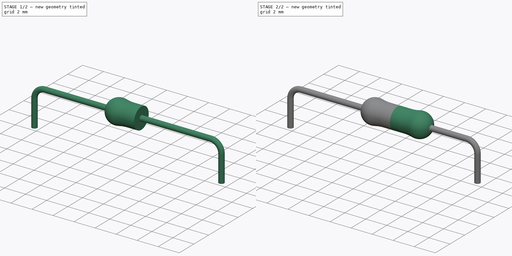
[diagram: build sequence overview — one tinted view per stage of 2, left to right]
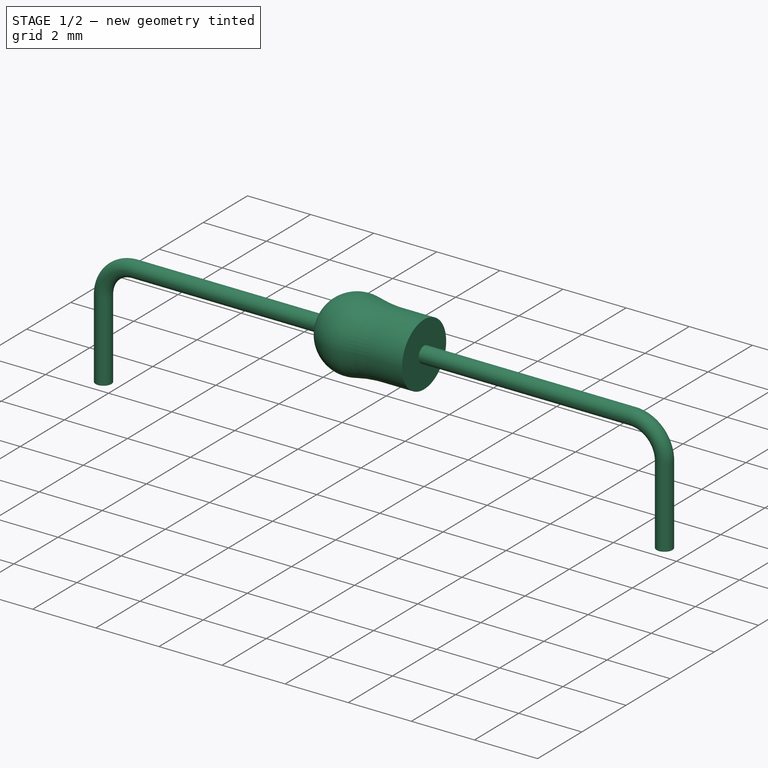
[diagram: stage 1 of 2 — iso view after this stage's code; geometry added in this stage tinted green]
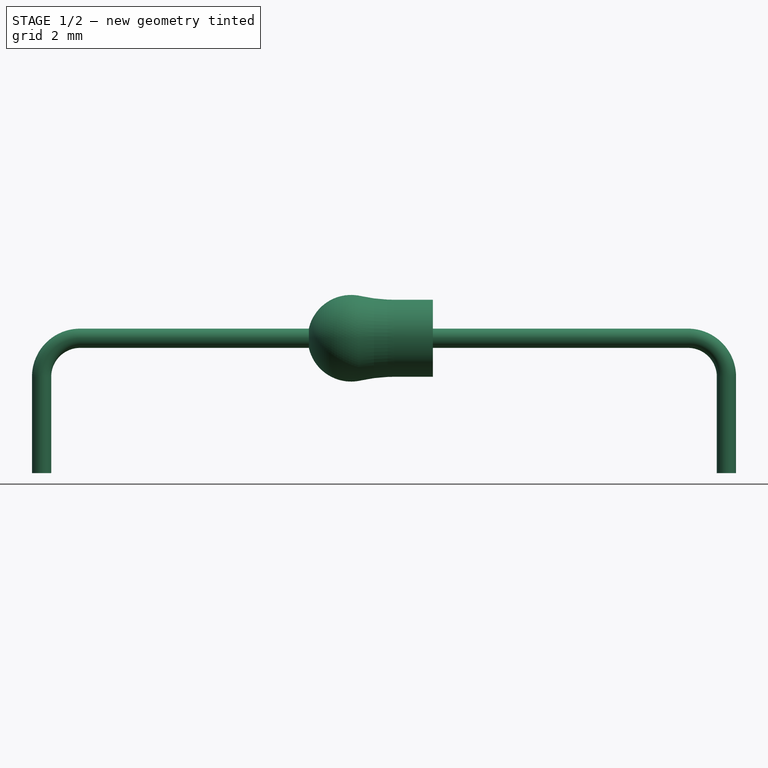
[diagram: stage 1 of 2 — front view after this stage's code; geometry added in this stage tinted green]
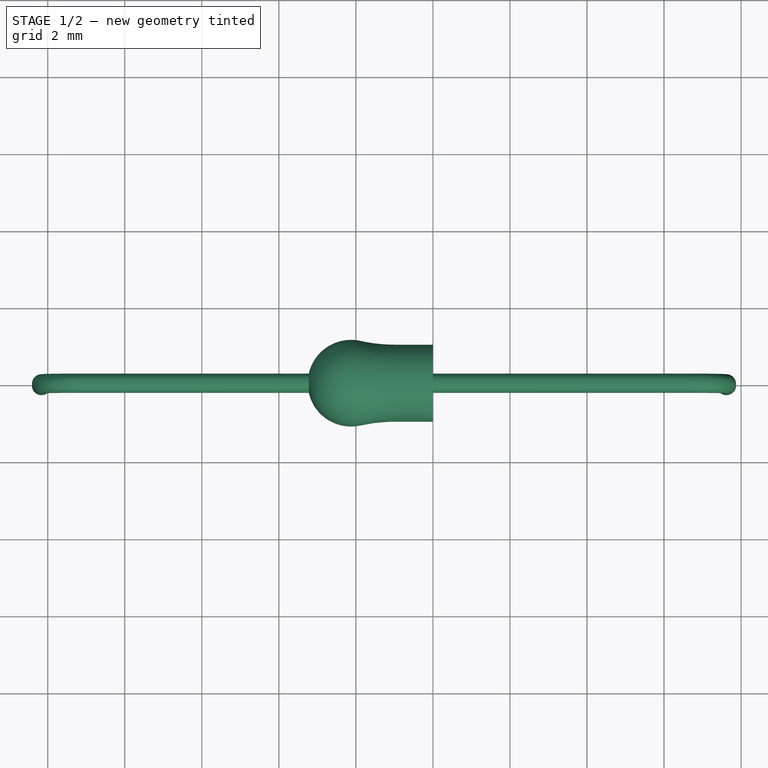
[diagram: stage 1 of 2 — top view after this stage's code; geometry added in this stage tinted green]
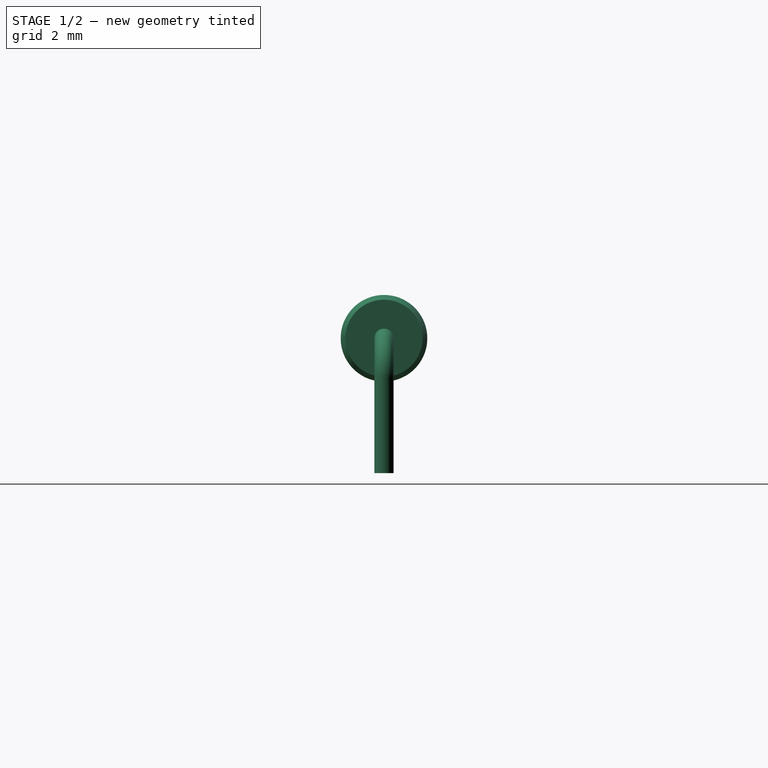
[diagram: stage 1 of 2 — right view after this stage's code; geometry added in this stage tinted green]
FCSTD DOCUMENT  (FreeCAD 0.14R3692 (Git))
Label: Resistor
License: CC-BY 3.0
LicenseURL: http://creativecommons.org/licenses/by/3.0/
objects: Sketcher::SketchObject×3, PartDesign::Revolution×1, PartDesign::Mirrored×1, Part::Sweep×1, Part::MultiFuse×1
note: 8 computed .brp shape members not serialized (recipe doc carries the construction recipe); baked Part::Feature solids carry a one-line shape summary decoded from their .brp

FEATURE [Sketcher::SketchObject] Sketch  label="ResistorSketch"
  sketch-geometry (5):
    g0: ArcOfCircle CenterX=-1.00001 CenterY=4.99993 CenterZ=0 NormalX=0 NormalY=0 NormalZ=1 Radius=3.99993 StartAngle=4.49107 EndAngle=4.71239
    g1: ArcOfCircle CenterX=-2.125 CenterY=0 CenterZ=0 NormalX=0 NormalY=0 NormalZ=1 Radius=1.125 StartAngle=1.34948 EndAngle=3.14159
    g2: LineSegment StartX=-1 StartY=1 StartZ=0 EndX=0 EndY=1 EndZ=0
    g3: LineSegment StartX=-3.25 StartY=0 StartZ=0 EndX=0 EndY=0 EndZ=0
    g4: LineSegment StartX=0 StartY=1 StartZ=0 EndX=0 EndY=0 EndZ=0
  constraints (16):
    c: PointOnObject(g1,g-1)
    c: Coincident(g0,g1)
    c: Tangent(g1,g0)
    c: Coincident(g2,g0)
    c: PointOnObject(g2,g-2)
    c: Horizontal(g2)
    c: Coincident(g3,g1)
    c: Coincident(g3,g-1)
    c: Horizontal(g3)
    c: Coincident(g4,g-1)
    c: Coincident(g2,g4)
    c: Tangent(g0,g2)
    c: DistanceY(g4) = -1
    c: DistanceX(g3) = 3.25
    c: Radius(g1) = 1.125
    c: DistanceX(g2) = 1
FEATURE [PartDesign::Revolution] Revolution  label="ResistorRevolution"
  Angle = 360
  Axis = (1,0,0)
  Base = (0,0,0)
  ReferenceAxis = -> Sketch [H_Axis]
  Sketch = -> Sketch
FEATURE [Sketcher::SketchObject] Sketch001  label="LegSketch001"
  Placement = pos=(0,0,0) rot=(0.57735,0.57735,0.57735;2.0944rad)
  sketch-geometry (1):
    g0: Circle CenterX=0 CenterY=0 CenterZ=0 NormalX=0 NormalY=0 NormalZ=1 Radius=0.25
  constraints (2):
    c: Coincident(g0,g-1)
    c: Radius(g0) = 0.25
FEATURE [Sketcher::SketchObject] Sketch002
  Placement = pos=(0,0,0) rot=(1,0,0;1.5708rad)
  sketch-geometry (5):
    g0: LineSegment StartX=6.62 StartY=0 StartZ=0 EndX=-9.16 EndY=0 EndZ=0
    g1: LineSegment StartX=-10.16 StartY=-1 StartZ=0 EndX=-10.16 EndY=-3.5 EndZ=0
    g2: LineSegment StartX=7.62 StartY=-1 StartZ=0 EndX=7.62 EndY=-3.5 EndZ=0
    g3: ArcOfCircle CenterX=-9.16 CenterY=-1 CenterZ=0 NormalX=0 NormalY=0 NormalZ=1 Radius=1 StartAngle=1.5708 EndAngle=3.14159
    g4: ArcOfCircle CenterX=6.62 CenterY=-1 CenterZ=0 NormalX=0 NormalY=0 NormalZ=1 Radius=1 StartAngle=0 EndAngle=1.5708
  constraints (14):
    c: Horizontal(g0)
    c: Vertical(g1)
    c: Vertical(g2)
    c: Equal(g2,g1)
    c: Tangent(g0,g3)
    c: Tangent(g1,g3)
    c: Tangent(g0,g4)
    c: Tangent(g2,g4)
    c: Radius(g4) = 1
    c: DistanceY(g2) = -2.5
    c: Equal(g3,g4)
    c: DistanceX(g1,g2) = 17.78
    c: PointOnObject(g-1,g0)
    c: DistanceX(g-1,g2) = 7.62
FEATURE [Part::Sweep] Sweep  label="LegSweep"
  Frenet = false
  Sections = -> [Sketch001]
  Solid = true
  Spine = -> Sketch002 [Edge1]
  Transition = 1
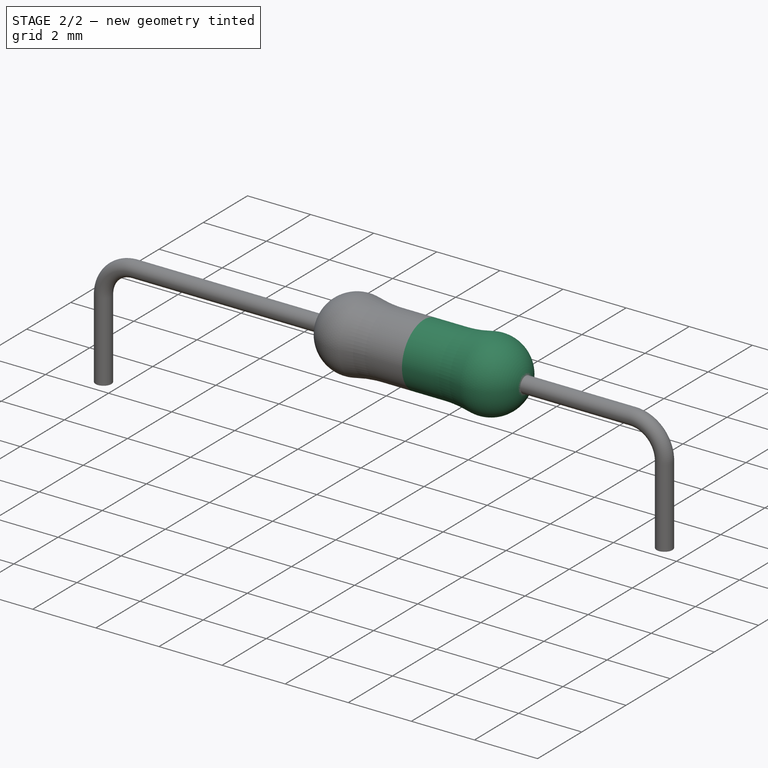
[diagram: stage 2 of 2 — iso view after this stage's code; geometry added in this stage tinted green]
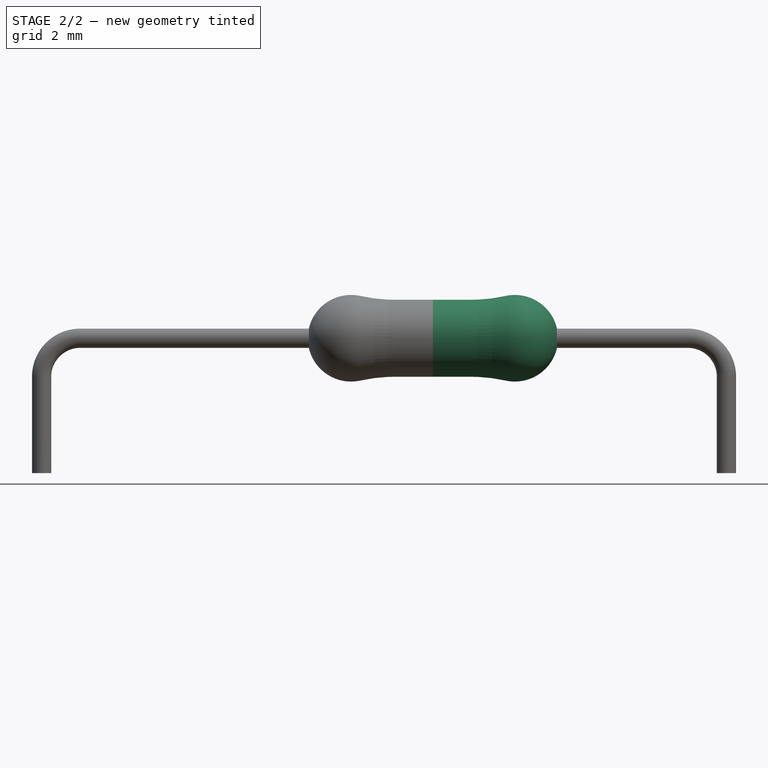
[diagram: stage 2 of 2 — front view after this stage's code; geometry added in this stage tinted green]
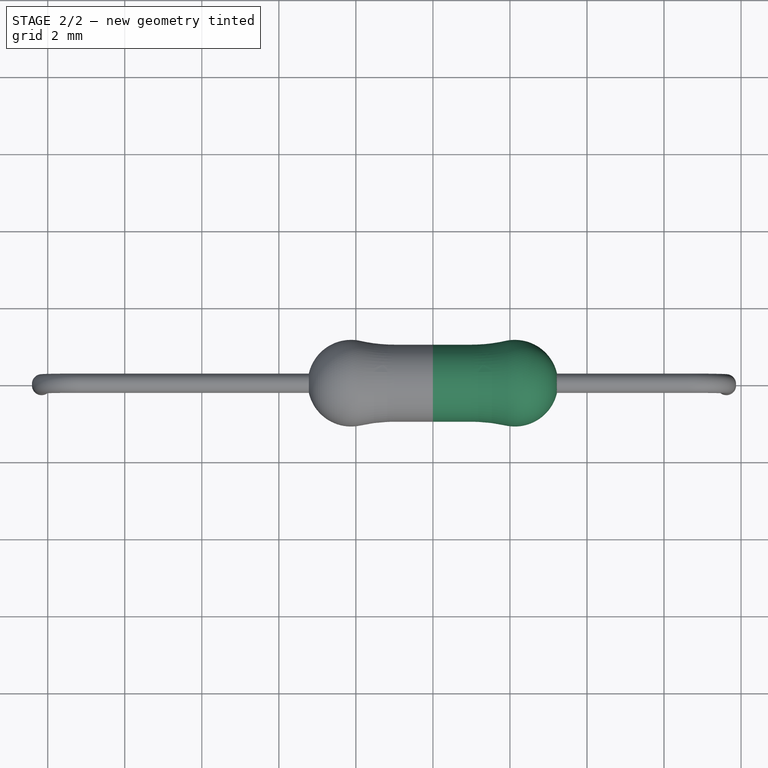
[diagram: stage 2 of 2 — top view after this stage's code; geometry added in this stage tinted green]
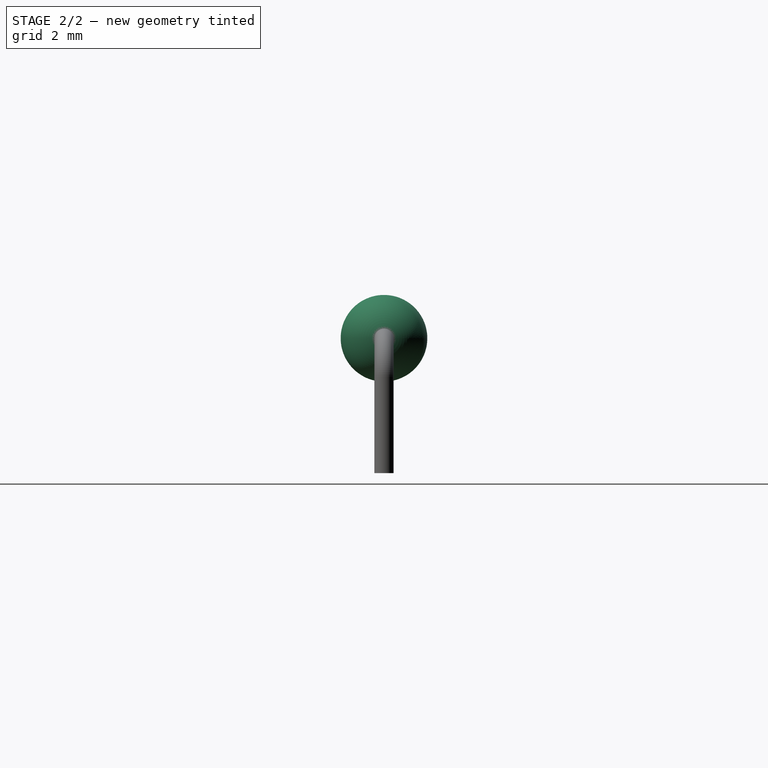
[diagram: stage 2 of 2 — right view after this stage's code; geometry added in this stage tinted green]
FEATURE [PartDesign::Mirrored] Mirrored  label="ResistorMirrored"
  MirrorPlane = -> Sketch [V_Axis]
  Originals = -> [Revolution]
FEATURE [Part::MultiFuse] Fusion  label="ResistorFusion"
  Shapes = -> [Mirrored,Sweep]
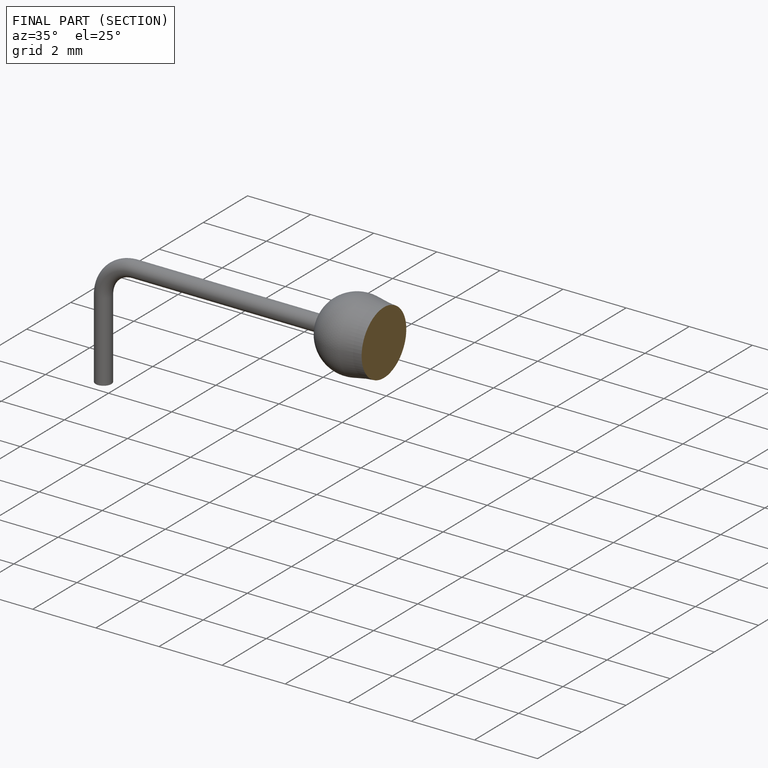
[diagram: finished part — half-section view (interior)]
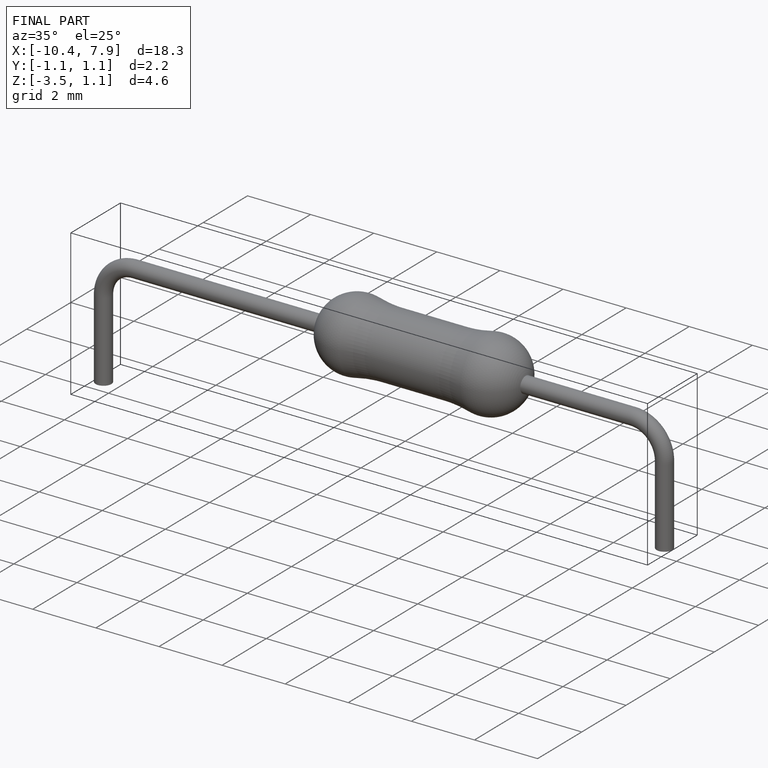
[diagram: finished part — iso view with bounding-box wireframe]
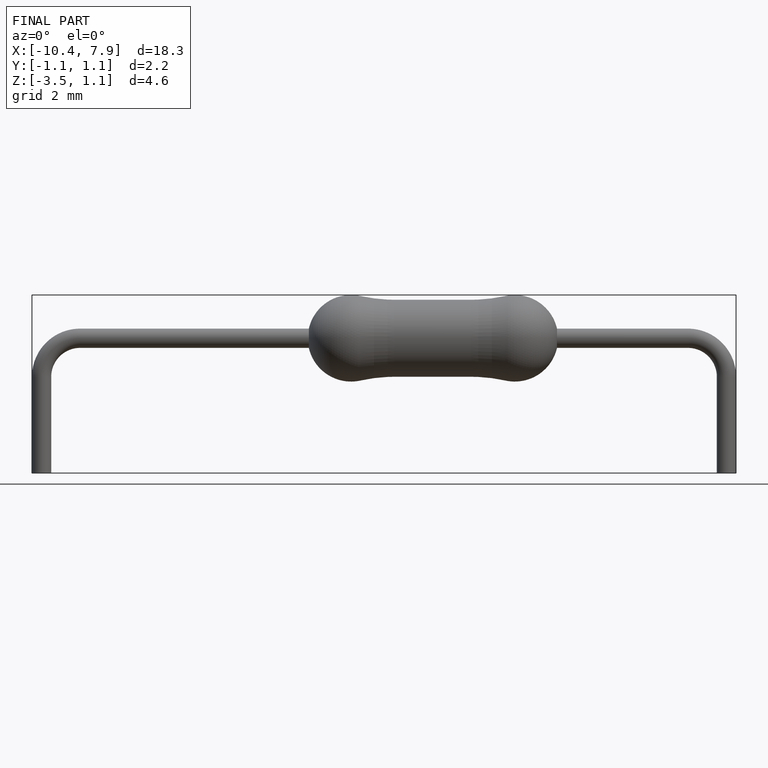
[diagram: finished part — front view with bounding-box wireframe]
